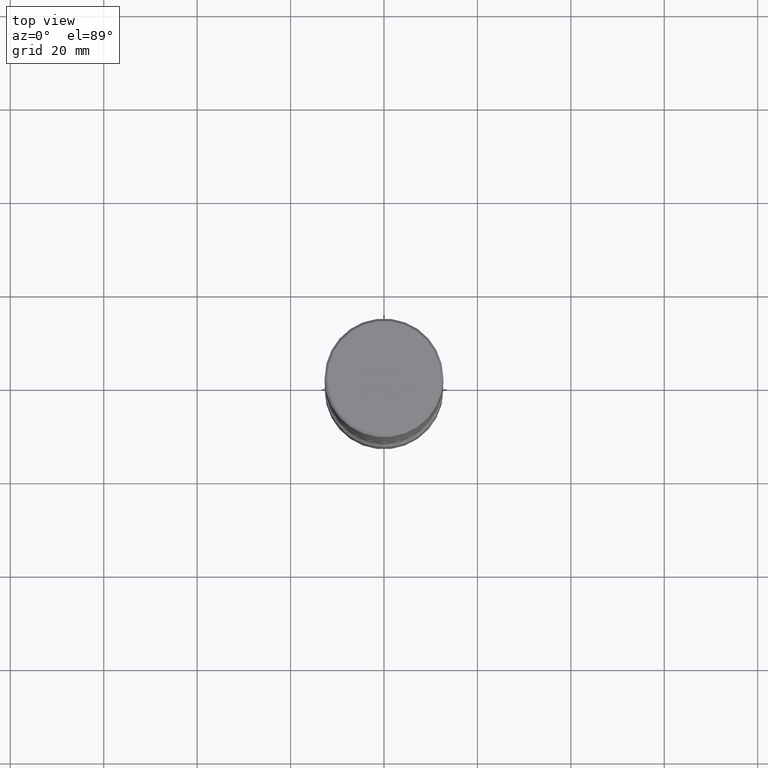
[diagram: clean part render]
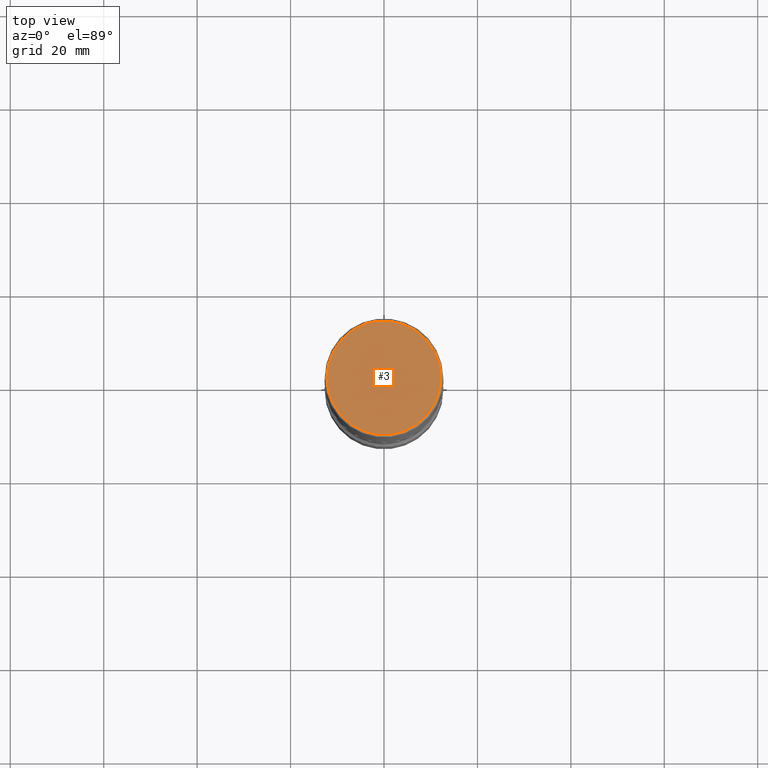
[diagram: same view with one face highlighted and labeled with its STEP entity id]
A machine part, top view. The second image highlights one B-rep face of the part: STEP entity #3.
In plain terms, the highlighted planar face has unit normal (0, -0, -1).
Its self-contained STEP definition (entity closure, byte-faithful):
#3 = ADVANCED_FACE ( 'NONE', ( #78 ), #238, .F. ) ;
#39 = CARTESIAN_POINT ( 'NONE',  ( -3.131554243005659264E-46, 4.471029511141341874E-32, 1.280553747030123384E-17 ) ) ;
#64 = EDGE_CURVE ( 'NONE', #392, #207, #144, .T. ) ;
#78 = FACE_OUTER_BOUND ( 'NONE', #344, .T. ) ;
#115 = AXIS2_PLACEMENT_3D ( 'NONE', #528, #180, #357 ) ;
#144 = CIRCLE ( 'NONE', #214, 0.4799999999999998712 ) ;
#177 = DIRECTION ( 'NONE',  ( -2.445468806185136597E-29, 3.491481338843145583E-15, 1.000000000000000000 ) ) ;
#180 = DIRECTION ( 'NONE',  ( 2.438088387897960049E-29, -3.491481338843145188E-15, -1.000000000000000000 ) ) ;
#186 = CIRCLE ( 'NONE', #228, 0.4799999999999998712 ) ;
#207 = VERTEX_POINT ( 'NONE', #260 ) ;
#214 = AXIS2_PLACEMENT_3D ( 'NONE', #411, #374, #539 ) ;
#228 = AXIS2_PLACEMENT_3D ( 'NONE', #39, #177, #432 ) ;
#238 = PLANE ( 'NONE',  #115 ) ;
#256 = EDGE_CURVE ( 'NONE', #207, #392, #186, .T. ) ;
#260 = CARTESIAN_POINT ( 'NONE',  ( -0.4799999999999998712, 3.386736898677838408E-15, 1.280553747027767124E-17 ) ) ;
#344 = EDGE_LOOP ( 'NONE', ( #371, #549 ) ) ;
#357 = DIRECTION ( 'NONE',  ( -1.000000000000000000, 6.982962677686265922E-15, -4.876176775795935793E-29 ) ) ;
#371 = ORIENTED_EDGE ( 'NONE', *, *, #256, .T. ) ;
#374 = DIRECTION ( 'NONE',  ( -2.445468806185136597E-29, 3.491481338843145583E-15, 1.000000000000000000 ) ) ;
#392 = VERTEX_POINT ( 'NONE', #555 ) ;
#411 = CARTESIAN_POINT ( 'NONE',  ( -3.131554243005659264E-46, 4.471029511141341874E-32, 1.280553747030123384E-17 ) ) ;
#432 = DIRECTION ( 'NONE',  ( 1.000000000000000000, -6.982962677686266711E-15, 4.876036955247130525E-29 ) ) ;
#528 = CARTESIAN_POINT ( 'NONE',  ( 3.351822085289406759E-15, 0.4799999999999998712, -1.669508273909558853E-15 ) ) ;
#539 = DIRECTION ( 'NONE',  ( 1.000000000000000000, -6.982962677686266711E-15, 4.876036955247130525E-29 ) ) ;
#549 = ORIENTED_EDGE ( 'NONE', *, *, #64, .T. ) ;
#555 = CARTESIAN_POINT ( 'NONE',  ( 0.4799999999999998712, -3.396558832296481704E-15, 1.280553747032483033E-17 ) ) ;